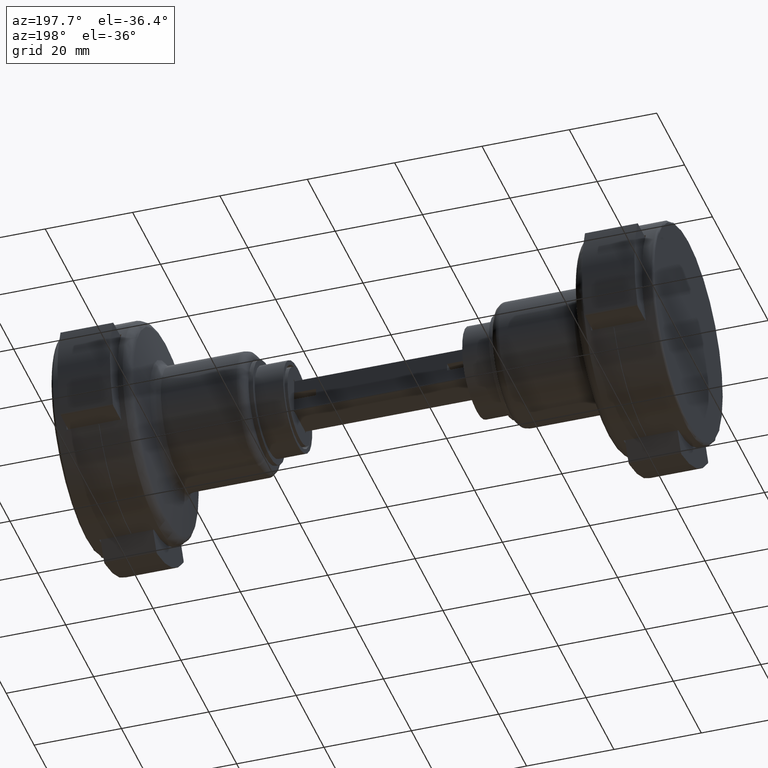
[diagram: clean part render]
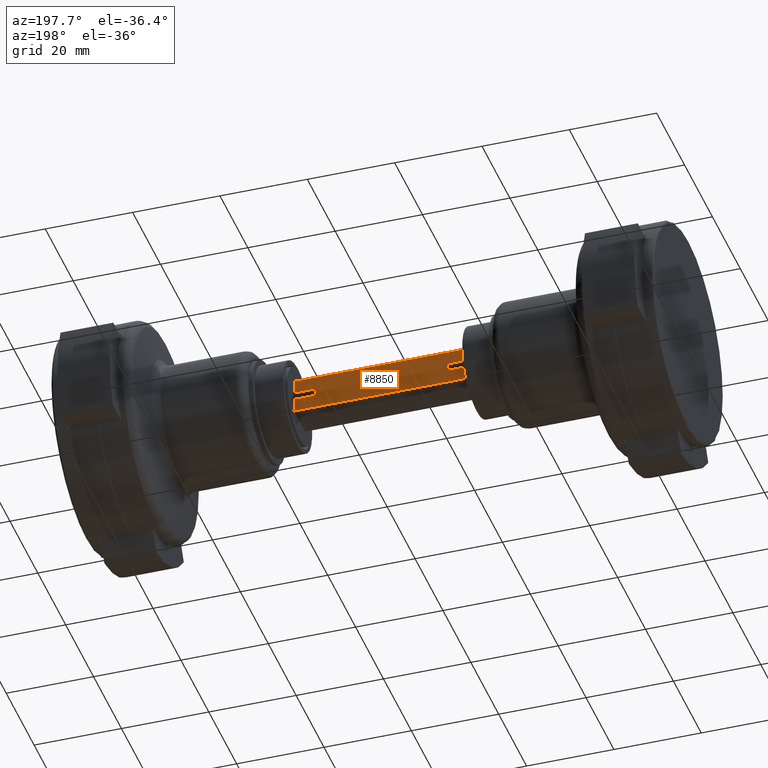
[diagram: same view with one face highlighted and labeled with its STEP entity id]
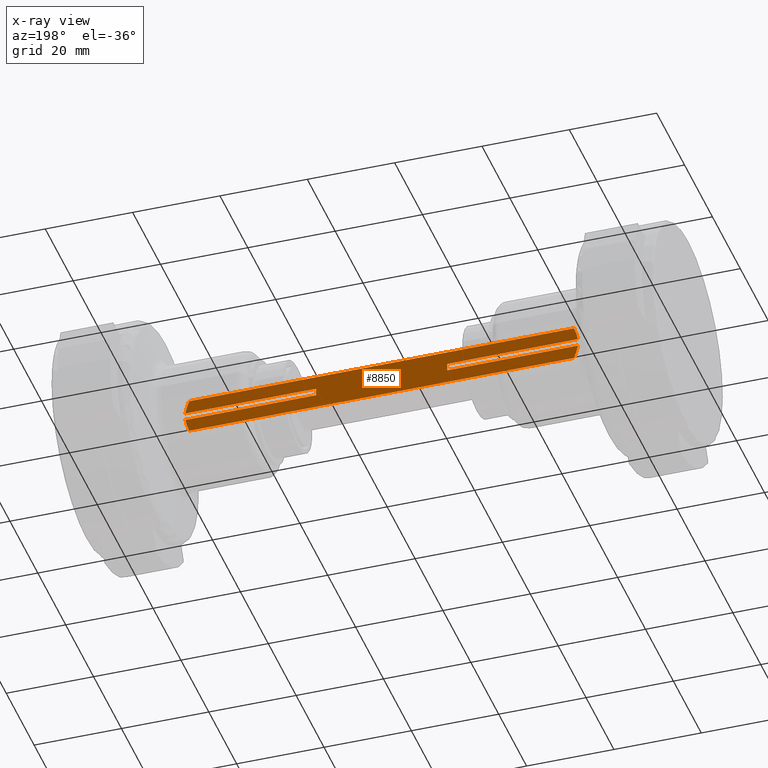
[diagram: x-ray of the same camera — body ghosted, the highlighted face saturated]
A machine part, auxiliary view. The second image highlights one B-rep face of the part: STEP entity #8850.
The next image is the same camera in x-ray: the body ghosted, the highlighted face saturated — about 0% of this face is hidden behind the body in this view.
In plain terms, the highlighted planar face has unit normal (0, -1, 0).
Its self-contained STEP definition (entity closure, byte-faithful):
#48 = CARTESIAN_POINT ( 'NONE',  ( -44.04341475304761389, 4.000000000000001776, 4.000000000000001776 ) ) ;
#95 = ORIENTED_EDGE ( 'NONE', *, *, #4677, .F. ) ;
#203 = CARTESIAN_POINT ( 'NONE',  ( -44.94539141800778026, 4.000000000000029310, -0.8750000000000001110 ) ) ;
#299 = DIRECTION ( 'NONE',  ( 1.000000000000000000, -0.000000000000000000, -0.000000000000000000 ) ) ;
#813 = LINE ( 'NONE', #6339, #12930 ) ;
#860 = VERTEX_POINT ( 'NONE', #11697 ) ;
#861 = VERTEX_POINT ( 'NONE', #1811 ) ;
#927 = CARTESIAN_POINT ( 'NONE',  ( 15.00000000000000000, 4.000000000000000888, -0.8749999999999994449 ) ) ;
#1246 = ORIENTED_EDGE ( 'NONE', *, *, #5243, .F. ) ;
#1354 = CARTESIAN_POINT ( 'NONE',  ( 44.94539141800801474, 3.999999999999999112, -0.8750000000000995870 ) ) ;
#1370 = CARTESIAN_POINT ( 'NONE',  ( 44.94539141800778737, 4.000000000000030198, 0.8750000000000005551 ) ) ;
#1467 = CARTESIAN_POINT ( 'NONE',  ( 44.94539141800778737, 4.000000000000030198, 0.8750000000000005551 ) ) ;
#1649 = CARTESIAN_POINT ( 'NONE',  ( 15.00000000000000000, 4.000000000000000888, 0.8750000000000005551 ) ) ;
#1778 = CARTESIAN_POINT ( 'NONE',  ( -15.00000000000000000, 4.000000000000000888, -0.8750000000000001110 ) ) ;
#1787 = EDGE_LOOP ( 'NONE', ( #9288, #8562, #6618, #95, #1984, #14443, #14178, #2507, #1895, #8795, #1246, #12236 ) ) ;
#1811 = CARTESIAN_POINT ( 'NONE',  ( 44.94539141800801474, 3.999999999999999112, -0.8750000000000995870 ) ) ;
#1895 = ORIENTED_EDGE ( 'NONE', *, *, #10575, .F. ) ;
#1951 = VECTOR ( 'NONE', #3140, 1000.000000000000000 ) ;
#1984 = ORIENTED_EDGE ( 'NONE', *, *, #13344, .F. ) ;
#2003 = CARTESIAN_POINT ( 'NONE',  ( -44.04341475304761389, 4.000000000000001776, 4.000000000000001776 ) ) ;
#2040 = LINE ( 'NONE', #13702, #7204 ) ;
#2158 = CARTESIAN_POINT ( 'NONE',  ( -44.87921994223835043, 3.999999999999999112, 1.411331455495213882 ) ) ;
#2450 = VECTOR ( 'NONE', #299, 1000.000000000000000 ) ;
#2507 = ORIENTED_EDGE ( 'NONE', *, *, #12214, .F. ) ;
#2831 = B_SPLINE_CURVE_WITH_KNOTS ( 'NONE', 3,
 ( #203, #10487, #7704, #8031, #5162, #15119 ),
 .UNSPECIFIED., .F., .F.,
 ( 4, 2, 4 ),
 ( 0.01539246089972623119, 0.01700859266985329382, 0.01862472443998035646 ),
 .UNSPECIFIED. ) ;
#3140 = DIRECTION ( 'NONE',  ( -1.000000000000000000, -0.000000000000000000, -0.000000000000000000 ) ) ;
#3271 = CARTESIAN_POINT ( 'NONE',  ( 15.00000000000000000, 4.000000000000000888, -0.8749999999999994449 ) ) ;
#3474 = B_SPLINE_CURVE_WITH_KNOTS ( 'NONE', 3,
 ( #1467, #6258, #9339, #15435, #11805, #11862 ),
 .UNSPECIFIED., .F., .F.,
 ( 4, 2, 4 ),
 ( 0.009424710491112490290, 0.01106730895433996782, 0.01270990741756744535 ),
 .UNSPECIFIED. ) ;
#3795 = B_SPLINE_CURVE_WITH_KNOTS ( 'NONE', 3,
 ( #8658, #12187, #7365, #11139, #4831, #1354 ),
 .UNSPECIFIED., .F., .F.,
 ( 4, 2, 4 ),
 ( 0.004405074066177484642, 0.006035893612346614895, 0.007666713158515744281 ),
 .UNSPECIFIED. ) ;
#3809 = VECTOR ( 'NONE', #9490, 1000.000000000000000 ) ;
#4512 = CARTESIAN_POINT ( 'NONE',  ( -15.00000000000000000, 4.000000000000000888, -0.8750000000000001110 ) ) ;
#4677 = EDGE_CURVE ( 'NONE', #10819, #12607, #12125, .T. ) ;
#4688 = B_SPLINE_CURVE_WITH_KNOTS ( 'NONE', 3,
 ( #2003, #15569, #8268, #5823, #2158, #8313 ),
 .UNSPECIFIED., .F., .F.,
 ( 4, 2, 4 ),
 ( 0.01039468755066287435, 0.01202249215247776573, 0.01365029675429265538 ),
 .UNSPECIFIED. ) ;
#4803 = VERTEX_POINT ( 'NONE', #11232 ) ;
#4831 = CARTESIAN_POINT ( 'NONE',  ( 44.87873634941627898, 3.999999999999999112, -1.415251060417864304 ) ) ;
#5162 = CARTESIAN_POINT ( 'NONE',  ( -44.24904763687255382, 3.999999999999999112, -3.496304360291874413 ) ) ;
#5243 = EDGE_CURVE ( 'NONE', #7643, #9614, #6536, .T. ) ;
#5628 = VECTOR ( 'NONE', #7874, 1000.000000000000000 ) ;
#5823 = CARTESIAN_POINT ( 'NONE',  ( -44.75593809106884891, 3.999999999999999112, 1.938556675108112470 ) ) ;
#6258 = CARTESIAN_POINT ( 'NONE',  ( 44.87921994223834332, 4.000000000000000000, 1.411331455495215215 ) ) ;
#6339 = CARTESIAN_POINT ( 'NONE',  ( -15.00000000000000000, 4.000000000000000888, 0.8749999999999998890 ) ) ;
#6536 = LINE ( 'NONE', #1649, #10209 ) ;
#6594 = CARTESIAN_POINT ( 'NONE',  ( 45.00000000000000000, 3.999999999999999112, 4.000000000000001776 ) ) ;
#6618 = ORIENTED_EDGE ( 'NONE', *, *, #7933, .F. ) ;
#7204 = VECTOR ( 'NONE', #13814, 1000.000000000000000 ) ;
#7365 = CARTESIAN_POINT ( 'NONE',  ( 44.43978035802832949, 3.999999999999999112, -2.983355208092790534 ) ) ;
#7643 = VERTEX_POINT ( 'NONE', #3271 ) ;
#7704 = CARTESIAN_POINT ( 'NONE',  ( -44.75476316776837393, 3.999999999999999112, -1.942875093181764878 ) ) ;
#7771 = CARTESIAN_POINT ( 'NONE',  ( -15.00000000000000000, 4.000000000000000888, 0.8749999999999998890 ) ) ;
#7833 = FACE_OUTER_BOUND ( 'NONE', #1787, .T. ) ;
#7874 = DIRECTION ( 'NONE',  ( -0.000000000000000000, -0.000000000000000000, -1.000000000000000000 ) ) ;
#7933 = EDGE_CURVE ( 'NONE', #12607, #10711, #2831, .T. ) ;
#8031 = CARTESIAN_POINT ( 'NONE',  ( -44.43978035802832238, 3.999999999999999112, -2.983355208092773658 ) ) ;
#8268 = CARTESIAN_POINT ( 'NONE',  ( -44.44032321602043822, 3.999999999999999112, 2.981996921138053480 ) ) ;
#8313 = CARTESIAN_POINT ( 'NONE',  ( -44.94539141800778737, 3.999999999999999112, 0.8749999999999997780 ) ) ;
#8394 = PLANE ( 'NONE',  #14392 ) ;
#8562 = ORIENTED_EDGE ( 'NONE', *, *, #11891, .T. ) ;
#8625 = EDGE_CURVE ( 'NONE', #7643, #861, #14774, .T. ) ;
#8658 = CARTESIAN_POINT ( 'NONE',  ( 44.04341475304760678, 4.000000000000000000, -3.999999999999999112 ) ) ;
#8795 = ORIENTED_EDGE ( 'NONE', *, *, #9266, .F. ) ;
#8844 = CARTESIAN_POINT ( 'NONE',  ( 45.00000000000000000, 3.999999999999999112, -3.999999999999999112 ) ) ;
#8850 = ADVANCED_FACE ( 'NONE', ( #7833 ), #8394, .F. ) ;
#8982 = VERTEX_POINT ( 'NONE', #7771 ) ;
#9266 = EDGE_CURVE ( 'NONE', #9614, #15217, #13399, .T. ) ;
#9288 = ORIENTED_EDGE ( 'NONE', *, *, #12137, .F. ) ;
#9339 = CARTESIAN_POINT ( 'NONE',  ( 44.75593809106885601, 3.999999999999999112, 1.938556675108114247 ) ) ;
#9490 = DIRECTION ( 'NONE',  ( 1.000000000000000000, -0.000000000000000000, -0.000000000000000000 ) ) ;
#9571 = CARTESIAN_POINT ( 'NONE',  ( 15.00000000000000000, 4.000000000000000888, 0.8750000000000005551 ) ) ;
#9614 = VERTEX_POINT ( 'NONE', #9571 ) ;
#10209 = VECTOR ( 'NONE', #10239, 1000.000000000000000 ) ;
#10239 = DIRECTION ( 'NONE',  ( -0.000000000000000000, -0.000000000000000000, 1.000000000000000000 ) ) ;
#10367 = VERTEX_POINT ( 'NONE', #48 ) ;
#10476 = LINE ( 'NONE', #8844, #14735 ) ;
#10487 = CARTESIAN_POINT ( 'NONE',  ( -44.87873634941627188, 4.000000000000000000, -1.415251060417824336 ) ) ;
#10575 = EDGE_CURVE ( 'NONE', #15217, #4803, #3474, .T. ) ;
#10711 = VERTEX_POINT ( 'NONE', #14467 ) ;
#10819 = VERTEX_POINT ( 'NONE', #4512 ) ;
#11094 = EDGE_CURVE ( 'NONE', #10367, #860, #4688, .T. ) ;
#11139 = CARTESIAN_POINT ( 'NONE',  ( 44.75476316776835262, 3.999999999999999112, -1.942875093181795076 ) ) ;
#11232 = CARTESIAN_POINT ( 'NONE',  ( 44.04341475304761389, 3.999999999999999112, 4.000000000000001776 ) ) ;
#11407 = DIRECTION ( 'NONE',  ( 0.000000000000000000, -0.000000000000000000, -1.000000000000000000 ) ) ;
#11697 = CARTESIAN_POINT ( 'NONE',  ( -44.94539141800778737, 3.999999999999999112, 0.8749999999999997780 ) ) ;
#11801 = LINE ( 'NONE', #12659, #5628 ) ;
#11805 = CARTESIAN_POINT ( 'NONE',  ( 44.24904486352164668, 3.999999999999999112, 3.496311153586488363 ) ) ;
#11862 = CARTESIAN_POINT ( 'NONE',  ( 44.04341475304761389, 3.999999999999999112, 4.000000000000001776 ) ) ;
#11869 = CARTESIAN_POINT ( 'NONE',  ( -44.94539141800778026, 4.000000000000029310, -0.8750000000000001110 ) ) ;
#11891 = EDGE_CURVE ( 'NONE', #13602, #10711, #10476, .T. ) ;
#12125 = LINE ( 'NONE', #1778, #1951 ) ;
#12137 = EDGE_CURVE ( 'NONE', #13602, #861, #3795, .T. ) ;
#12187 = CARTESIAN_POINT ( 'NONE',  ( 44.24904763687256093, 4.000000000000000000, -3.496304360291883739 ) ) ;
#12214 = EDGE_CURVE ( 'NONE', #4803, #10367, #2040, .T. ) ;
#12236 = ORIENTED_EDGE ( 'NONE', *, *, #8625, .T. ) ;
#12607 = VERTEX_POINT ( 'NONE', #11869 ) ;
#12659 = CARTESIAN_POINT ( 'NONE',  ( -15.00000000000000000, 4.000000000000000888, -0.8750000000000001110 ) ) ;
#12814 = DIRECTION ( 'NONE',  ( -1.000000000000000000, -0.000000000000000000, -0.000000000000000000 ) ) ;
#12930 = VECTOR ( 'NONE', #13498, 1000.000000000000000 ) ;
#13344 = EDGE_CURVE ( 'NONE', #8982, #10819, #11801, .T. ) ;
#13399 = LINE ( 'NONE', #15053, #2450 ) ;
#13432 = CARTESIAN_POINT ( 'NONE',  ( 44.04341475304760678, 4.000000000000000000, -3.999999999999999112 ) ) ;
#13498 = DIRECTION ( 'NONE',  ( -1.000000000000000000, -0.000000000000000000, -0.000000000000000000 ) ) ;
#13602 = VERTEX_POINT ( 'NONE', #13432 ) ;
#13702 = CARTESIAN_POINT ( 'NONE',  ( 45.00000000000000000, 3.999999999999999112, 4.000000000000001776 ) ) ;
#13814 = DIRECTION ( 'NONE',  ( -1.000000000000000000, -0.000000000000000000, -0.000000000000000000 ) ) ;
#14178 = ORIENTED_EDGE ( 'NONE', *, *, #11094, .F. ) ;
#14392 = AXIS2_PLACEMENT_3D ( 'NONE', #6594, #15168, #11407 ) ;
#14443 = ORIENTED_EDGE ( 'NONE', *, *, #14492, .T. ) ;
#14467 = CARTESIAN_POINT ( 'NONE',  ( -44.04341475304761389, 3.999999999999999112, -4.000000000000000888 ) ) ;
#14492 = EDGE_CURVE ( 'NONE', #8982, #860, #813, .T. ) ;
#14735 = VECTOR ( 'NONE', #12814, 1000.000000000000000 ) ;
#14774 = LINE ( 'NONE', #927, #3809 ) ;
#15053 = CARTESIAN_POINT ( 'NONE',  ( 15.00000000000000000, 4.000000000000000888, 0.8750000000000005551 ) ) ;
#15119 = CARTESIAN_POINT ( 'NONE',  ( -44.04341475304761389, 3.999999999999999112, -4.000000000000000888 ) ) ;
#15168 = DIRECTION ( 'NONE',  ( 0.000000000000000000, -1.000000000000000000, 0.000000000000000000 ) ) ;
#15217 = VERTEX_POINT ( 'NONE', #1370 ) ;
#15435 = CARTESIAN_POINT ( 'NONE',  ( 44.44032321602044533, 3.999999999999999112, 2.981996921138053036 ) ) ;
#15569 = CARTESIAN_POINT ( 'NONE',  ( -44.24904486352164668, 4.000000000000000000, 3.496311153586489251 ) ) ;